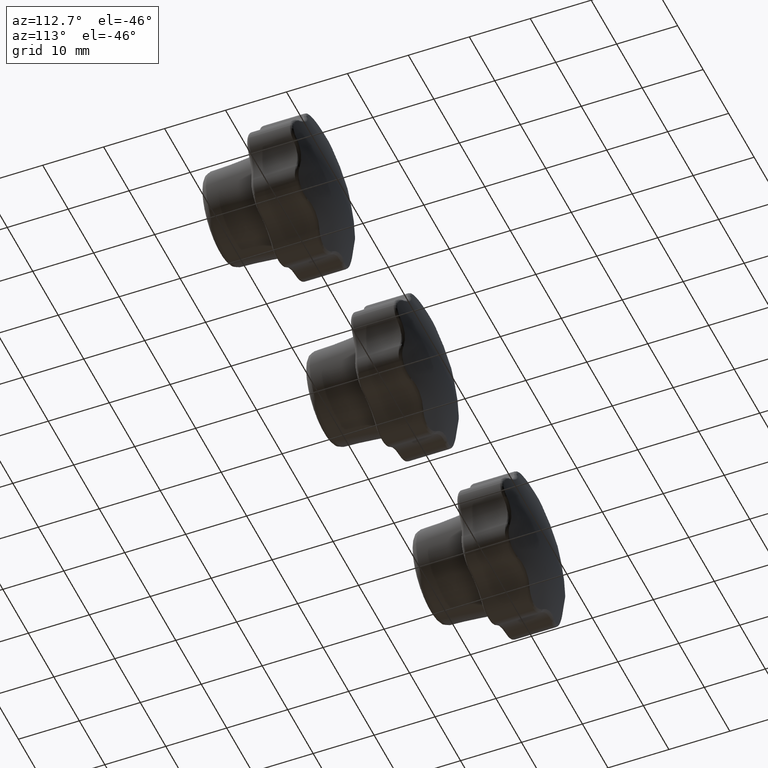
[diagram: clean part render]
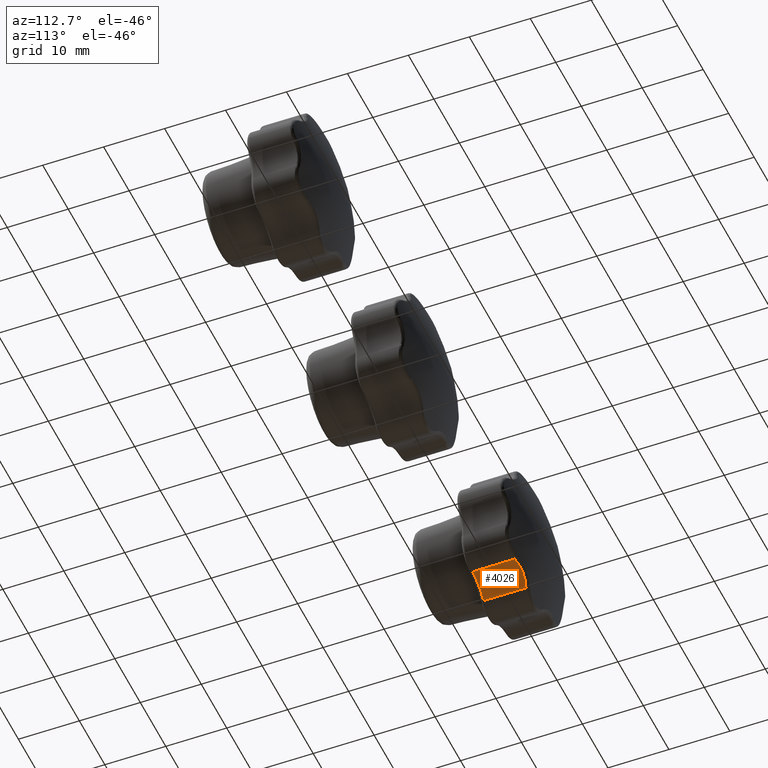
[diagram: same view with one face highlighted and labeled with its STEP entity id]
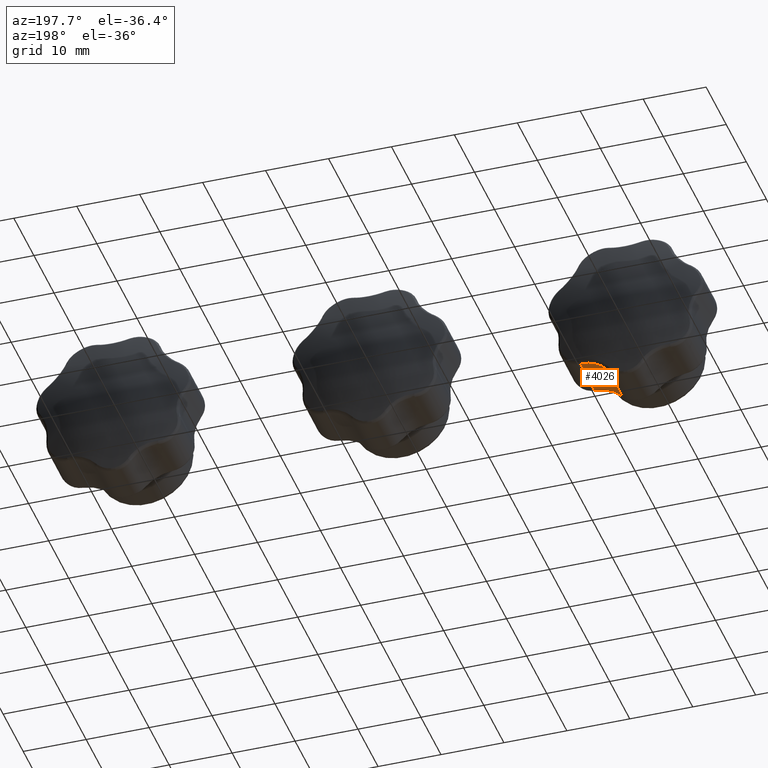
[diagram: same view with one face highlighted and labeled with its STEP entity id]
A machine part, auxiliary view. The second image highlights one B-rep face of the part: STEP entity #4026.
A second angle (auxiliary view) of the same face is appended — the face is thin or edge-on in the first view.
In plain terms, the highlighted cylindrical surface (partial cylindrical patch) has radius 6.625 mm, axis along (0, 1, 0).
Its self-contained STEP definition (entity closure, byte-faithful):
#123=LINE('',#8909,#207);
#124=LINE('',#8911,#208);
#207=VECTOR('',#5929,6.93882651897588);
#208=VECTOR('',#5932,6.93882651897588);
#444=B_SPLINE_CURVE_WITH_KNOTS('',3,(#8625,#8626,#8627,#8628,#8629),
 .UNSPECIFIED.,.F.,.F.,(4,1,4),(0.,0.307393674496469,0.537938930368821),
 .UNSPECIFIED.);
#611=CYLINDRICAL_SURFACE('',#4637,6.625);
#882=FACE_OUTER_BOUND('',#1171,.T.);
#1171=EDGE_LOOP('',(#3694,#3695,#3696,#3697));
#1567=CIRCLE('',#4613,6.625);
#1869=VERTEX_POINT('',#8581);
#1871=VERTEX_POINT('',#8617);
#1925=VERTEX_POINT('',#8864);
#1927=VERTEX_POINT('',#8870);
#2418=EDGE_CURVE('',#1869,#1871,#444,.T.);
#2514=EDGE_CURVE('',#1927,#1925,#1567,.T.);
#2534=EDGE_CURVE('',#1925,#1869,#123,.T.);
#2535=EDGE_CURVE('',#1871,#1927,#124,.T.);
#3694=ORIENTED_EDGE('',*,*,#2418,.F.);
#3695=ORIENTED_EDGE('',*,*,#2534,.F.);
#3696=ORIENTED_EDGE('',*,*,#2514,.F.);
#3697=ORIENTED_EDGE('',*,*,#2535,.F.);
#4026=ADVANCED_FACE('',(#882),#611,.F.);
#4613=AXIS2_PLACEMENT_3D('',#8872,#5873,#5874);
#4637=AXIS2_PLACEMENT_3D('',#8910,#5930,#5931);
#5873=DIRECTION('center_axis',(0.,1.,0.));
#5874=DIRECTION('ref_axis',(-0.433883739117558,0.,0.900968867902419));
#5929=DIRECTION('',(0.,1.,0.));
#5930=DIRECTION('center_axis',(0.,1.,0.));
#5931=DIRECTION('ref_axis',(0.10759169888637,0.,0.99419516511133));
#5932=DIRECTION('',(0.,-1.,0.));
#8581=CARTESIAN_POINT('',(7.15608375089119,7.43882651897588,-9.2728048504579));
#8617=CARTESIAN_POINT('',(2.78802552294259,7.43882651897588,-11.3763508265113));
#8625=CARTESIAN_POINT('Ctrl Pts',(7.15608375089119,7.43882651897587,-9.2728048504579));
#8626=CARTESIAN_POINT('Ctrl Pts',(6.22726857198782,7.65459201584701,-9.34184871980112));
#8627=CARTESIAN_POINT('Ctrl Pts',(4.58592992003073,7.82879460673445,-9.822053380896));
#8628=CARTESIAN_POINT('Ctrl Pts',(3.26284111987892,7.60065064162923,-10.864004226628));
#8629=CARTESIAN_POINT('Ctrl Pts',(2.78802552294259,7.43882651897587,-11.3763508265113));
#8864=CARTESIAN_POINT('',(7.15608375089119,0.5,-9.2728048504579));
#8870=CARTESIAN_POINT('',(2.78802552294259,0.5,-11.3763508265113));
#8872=CARTESIAN_POINT('Origin',(7.64720090194697,0.5,-15.8795762967801));
#8909=CARTESIAN_POINT('',(7.15608375089119,3.75,-9.2728048504579));
#8910=CARTESIAN_POINT('Origin',(7.64720090194697,0.,-15.8795762967801));
#8911=CARTESIAN_POINT('',(2.78802552294259,3.75,-11.3763508265113));